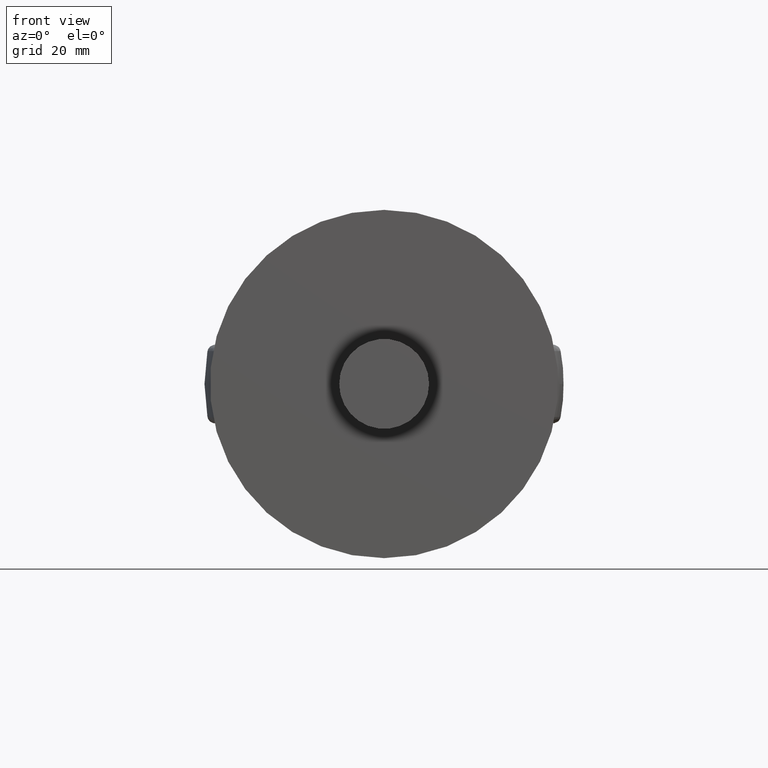
[diagram: clean part render]
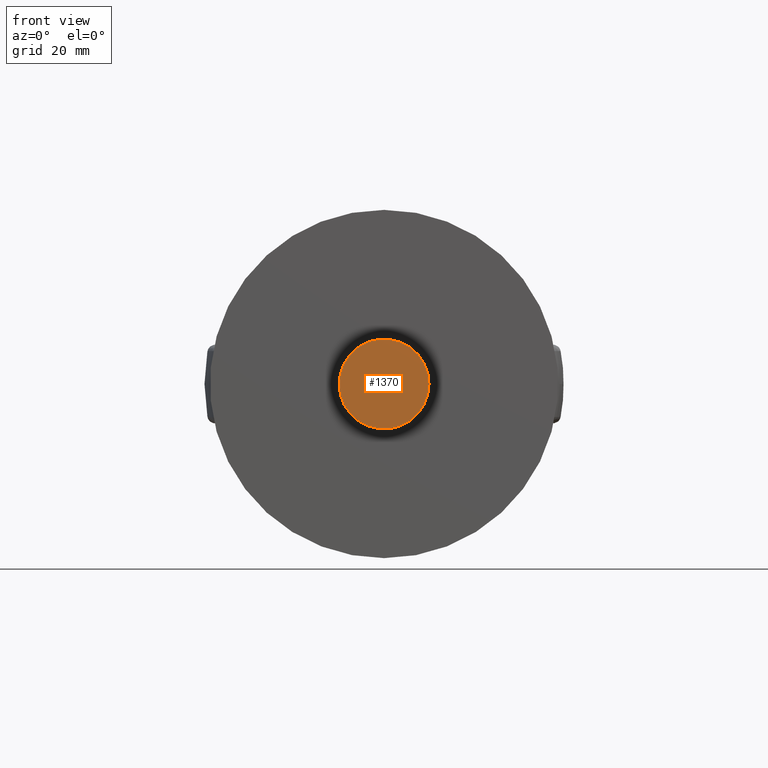
[diagram: same view with one face highlighted and labeled with its STEP entity id]
A machine part, front view. The second image highlights one B-rep face of the part: STEP entity #1370.
In plain terms, the highlighted planar face has unit normal (0, 1, 0).
Its self-contained STEP definition (entity closure, byte-faithful):
#1145=FACE_OUTER_BOUND('',#1892,.T.);
#1370=ADVANCED_FACE('',(#1145),#1605,.F.);
#1605=PLANE('',#5222);
#1730=CIRCLE('',#5220,8.);
#1892=EDGE_LOOP('',(#2946));
#2946=ORIENTED_EDGE('',*,*,#4474,.F.);
#4065=VERTEX_POINT('',#6980);
#4474=EDGE_CURVE('',#4065,#4065,#1730,.T.);
#5220=AXIS2_PLACEMENT_3D('',#6979,#5630,#5631);
#5222=AXIS2_PLACEMENT_3D('',#6982,#5634,#5635);
#5630=DIRECTION('',(0.,1.,0.));
#5631=DIRECTION('',(1.,0.,6.12323399573677E-17));
#5634=DIRECTION('',(0.,1.,0.));
#5635=DIRECTION('',(0.,0.,1.));
#6979=CARTESIAN_POINT('',(0.,-25.,0.));
#6980=CARTESIAN_POINT('',(8.,-25.,4.89858719658941E-16));
#6982=CARTESIAN_POINT('',(0.,-25.,0.));